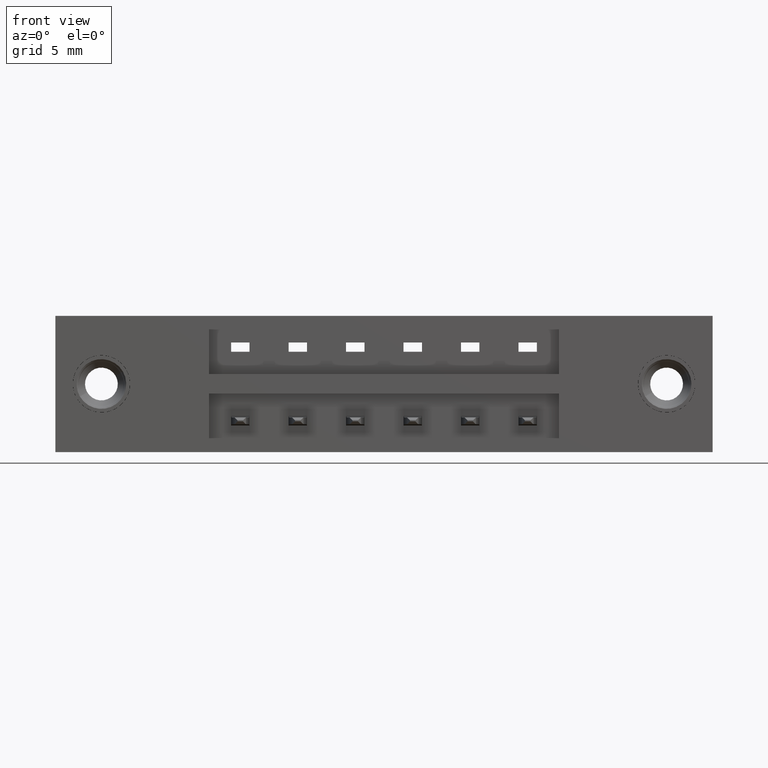
[diagram: clean part render]
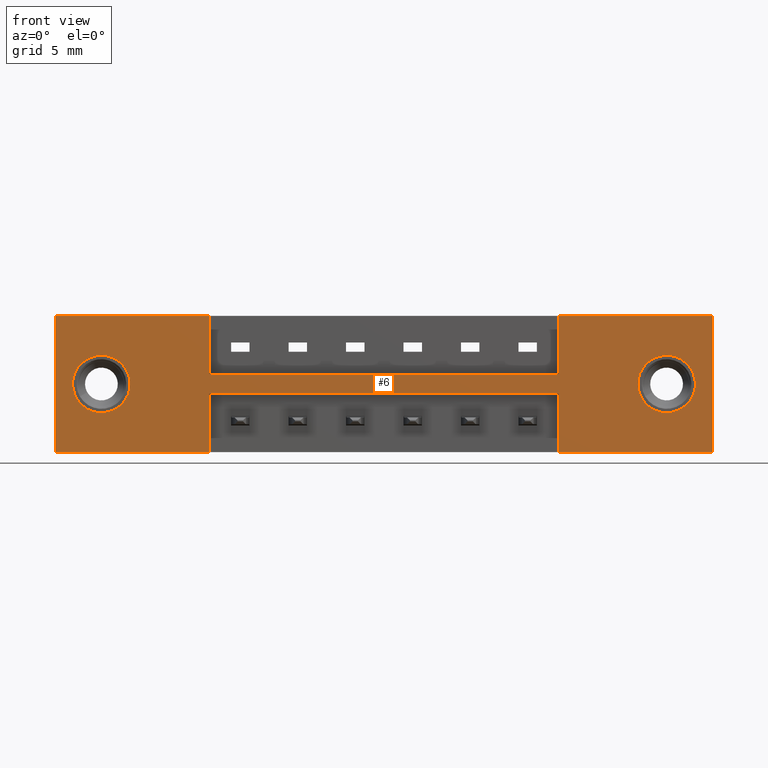
[diagram: same view with one face highlighted and labeled with its STEP entity id]
A machine part, front view. The second image highlights one B-rep face of the part: STEP entity #6.
In plain terms, the highlighted planar face has unit normal (0, -1, 0).
Its self-contained STEP definition (entity closure, byte-faithful):
#6 = ADVANCED_FACE ( 'NONE', ( #1727, #9404, #3496 ), #7607, .T. ) ;
#46 = DIRECTION ( 'NONE',  ( -1.000000000000000000, -0.0000000000000000000, -0.0000000000000000000 ) ) ;
#147 = ORIENTED_EDGE ( 'NONE', *, *, #2814, .F. ) ;
#158 = VERTEX_POINT ( 'NONE', #3230 ) ;
#191 = DIRECTION ( 'NONE',  ( -0.0000000000000000000, -0.0000000000000000000, 1.000000000000000000 ) ) ;
#376 = VECTOR ( 'NONE', #3260, 39.37007874015748100 ) ;
#408 = CARTESIAN_POINT ( 'NONE',  ( 1.784000000000000500, 0.0000000000000000000, 0.0000000000000000000 ) ) ;
#435 = DIRECTION ( 'NONE',  ( 0.0000000000000000000, 0.0000000000000000000, -1.000000000000000000 ) ) ;
#590 = DIRECTION ( 'NONE',  ( 1.000000000000000000, 0.0000000000000000000, 0.0000000000000000000 ) ) ;
#663 = DIRECTION ( 'NONE',  ( 0.0000000000000000000, 1.000000000000000000, 0.0000000000000000000 ) ) ;
#669 = VECTOR ( 'NONE', #1976, 39.37007874015748100 ) ;
#688 = EDGE_CURVE ( 'NONE', #1655, #7183, #2328, .T. ) ;
#976 = VECTOR ( 'NONE', #191, 39.37007874015748100 ) ;
#1024 = ORIENTED_EDGE ( 'NONE', *, *, #7387, .F. ) ;
#1143 = CARTESIAN_POINT ( 'NONE',  ( 0.4174999999999998700, 0.0000000000000000000, 0.0000000000000000000 ) ) ;
#1218 = DIRECTION ( 'NONE',  ( 0.0000000000000000000, 1.000000000000000000, -0.0000000000000000000 ) ) ;
#1229 = CARTESIAN_POINT ( 'NONE',  ( 0.4174999999999999800, 0.0000000000000000000, -0.1585000000000000300 ) ) ;
#1325 = ORIENTED_EDGE ( 'NONE', *, *, #4837, .F. ) ;
#1408 = ORIENTED_EDGE ( 'NONE', *, *, #6851, .T. ) ;
#1477 = LINE ( 'NONE', #4394, #7908 ) ;
#1510 = EDGE_LOOP ( 'NONE', ( #147, #1024, #2126, #4854, #4447, #1325, #5580, #8631, #8199, #8635, #2459, #4000 ) ) ;
#1655 = VERTEX_POINT ( 'NONE', #8402 ) ;
#1727 = FACE_BOUND ( 'NONE', #9434, .T. ) ;
#1779 = LINE ( 'NONE', #8340, #5320 ) ;
#1825 = AXIS2_PLACEMENT_3D ( 'NONE', #3296, #8495, #4062 ) ;
#1867 = VERTEX_POINT ( 'NONE', #8879 ) ;
#1870 = VERTEX_POINT ( 'NONE', #5804 ) ;
#1976 = DIRECTION ( 'NONE',  ( -0.0000000000000000000, -0.0000000000000000000, -1.000000000000000000 ) ) ;
#2126 = ORIENTED_EDGE ( 'NONE', *, *, #5661, .F. ) ;
#2197 = LINE ( 'NONE', #3782, #3973 ) ;
#2328 = CIRCLE ( 'NONE', #6166, 0.07800000000000009700 ) ;
#2376 = LINE ( 'NONE', #2512, #376 ) ;
#2459 = ORIENTED_EDGE ( 'NONE', *, *, #5484, .F. ) ;
#2482 = VERTEX_POINT ( 'NONE', #9345 ) ;
#2512 = CARTESIAN_POINT ( 'NONE',  ( 0.4174999999999999800, 0.0000000000000000000, -0.1585000000000000300 ) ) ;
#2610 = VECTOR ( 'NONE', #6233, 39.37007874015748100 ) ;
#2740 = CARTESIAN_POINT ( 'NONE',  ( 0.0000000000000000000, 0.0000000000000000000, -0.3700000000000000000 ) ) ;
#2814 = EDGE_CURVE ( 'NONE', #8634, #158, #7176, .T. ) ;
#2889 = CIRCLE ( 'NONE', #1825, 0.07800000000000001400 ) ;
#3062 = CIRCLE ( 'NONE', #7996, 0.07800000000000001400 ) ;
#3230 = CARTESIAN_POINT ( 'NONE',  ( 1.366499999999999800, 0.0000000000000000000, -0.2114999999999999900 ) ) ;
#3260 = DIRECTION ( 'NONE',  ( 1.000000000000000000, 0.0000000000000000000, 0.0000000000000000000 ) ) ;
#3296 = CARTESIAN_POINT ( 'NONE',  ( 0.1250000000000001900, 0.0000000000000000000, -0.1849999999999987200 ) ) ;
#3383 = DIRECTION ( 'NONE',  ( 0.0000000000000000000, 1.000000000000000000, -0.0000000000000000000 ) ) ;
#3389 = DIRECTION ( 'NONE',  ( 0.0000000000000000000, -1.000000000000000000, 0.0000000000000000000 ) ) ;
#3417 = CARTESIAN_POINT ( 'NONE',  ( 1.659000000000001100, 0.0000000000000000000, -0.1850000000000002200 ) ) ;
#3496 = FACE_OUTER_BOUND ( 'NONE', #1510, .T. ) ;
#3535 = VERTEX_POINT ( 'NONE', #3982 ) ;
#3549 = VERTEX_POINT ( 'NONE', #3955 ) ;
#3775 = LINE ( 'NONE', #9503, #9439 ) ;
#3782 = CARTESIAN_POINT ( 'NONE',  ( 0.0000000000000000000, 0.0000000000000000000, -0.3700000000000000000 ) ) ;
#3794 = CARTESIAN_POINT ( 'NONE',  ( 1.366499999999999800, 0.0000000000000000000, -0.3700000000000000000 ) ) ;
#3829 = VERTEX_POINT ( 'NONE', #1143 ) ;
#3831 = DIRECTION ( 'NONE',  ( 0.0000000000000000000, -0.0000000000000000000, -1.000000000000000000 ) ) ;
#3944 = DIRECTION ( 'NONE',  ( 0.0000000000000000000, 0.0000000000000000000, 1.000000000000000000 ) ) ;
#3955 = CARTESIAN_POINT ( 'NONE',  ( 0.0000000000000000000, 0.0000000000000000000, 0.0000000000000000000 ) ) ;
#3956 = CARTESIAN_POINT ( 'NONE',  ( 0.4174999999999997000, 0.0000000000000000000, -0.2114999999999999900 ) ) ;
#3967 = DIRECTION ( 'NONE',  ( -1.000000000000000000, -0.0000000000000000000, -0.0000000000000000000 ) ) ;
#3973 = VECTOR ( 'NONE', #46, 39.37007874015748100 ) ;
#3982 = CARTESIAN_POINT ( 'NONE',  ( 0.4174999999999999800, 0.0000000000000000000, -0.1585000000000000300 ) ) ;
#4000 = ORIENTED_EDGE ( 'NONE', *, *, #7896, .F. ) ;
#4017 = VECTOR ( 'NONE', #8243, 39.37007874015748100 ) ;
#4062 = DIRECTION ( 'NONE',  ( 0.0000000000000000000, 0.0000000000000000000, 1.000000000000000000 ) ) ;
#4092 = EDGE_CURVE ( 'NONE', #1867, #6205, #6940, .T. ) ;
#4320 = VERTEX_POINT ( 'NONE', #8597 ) ;
#4394 = CARTESIAN_POINT ( 'NONE',  ( 0.4174999999999997000, 0.0000000000000000000, -0.2114999999999999900 ) ) ;
#4447 = ORIENTED_EDGE ( 'NONE', *, *, #4092, .F. ) ;
#4620 = EDGE_CURVE ( 'NONE', #6205, #2482, #6011, .T. ) ;
#4717 = EDGE_CURVE ( 'NONE', #4982, #3549, #1779, .T. ) ;
#4764 = CARTESIAN_POINT ( 'NONE',  ( 0.4174999999999997000, 0.0000000000000000000, -0.2114999999999999900 ) ) ;
#4837 = EDGE_CURVE ( 'NONE', #3535, #1867, #2376, .T. ) ;
#4854 = ORIENTED_EDGE ( 'NONE', *, *, #4620, .F. ) ;
#4855 = ORIENTED_EDGE ( 'NONE', *, *, #8196, .T. ) ;
#4938 = CARTESIAN_POINT ( 'NONE',  ( 0.0000000000000000000, 0.0000000000000000000, -0.3700000000000000000 ) ) ;
#4982 = VERTEX_POINT ( 'NONE', #4938 ) ;
#5153 = CARTESIAN_POINT ( 'NONE',  ( 0.1250000000000001900, 0.0000000000000000000, -0.1849999999999987200 ) ) ;
#5320 = VECTOR ( 'NONE', #9065, 39.37007874015748100 ) ;
#5484 = EDGE_CURVE ( 'NONE', #8747, #1870, #8537, .T. ) ;
#5580 = ORIENTED_EDGE ( 'NONE', *, *, #7776, .F. ) ;
#5661 = EDGE_CURVE ( 'NONE', #2482, #4320, #8868, .T. ) ;
#5678 = CARTESIAN_POINT ( 'NONE',  ( 1.366499999999999800, 0.0000000000000000000, 0.0000000000000000000 ) ) ;
#5724 = CARTESIAN_POINT ( 'NONE',  ( 1.659000000000001100, 0.0000000000000000000, -0.1850000000000002200 ) ) ;
#5773 = AXIS2_PLACEMENT_3D ( 'NONE', #5724, #1218, #6465 ) ;
#5804 = CARTESIAN_POINT ( 'NONE',  ( 0.4174999999999997000, 0.0000000000000000000, -0.3700000000000000000 ) ) ;
#5834 = EDGE_CURVE ( 'NONE', #3549, #3829, #3775, .T. ) ;
#5856 = EDGE_CURVE ( 'NONE', #5978, #6575, #3062, .T. ) ;
#5903 = DIRECTION ( 'NONE',  ( 0.0000000000000000000, 0.0000000000000000000, 1.000000000000000000 ) ) ;
#5978 = VERTEX_POINT ( 'NONE', #7666 ) ;
#6011 = LINE ( 'NONE', #7511, #4017 ) ;
#6166 = AXIS2_PLACEMENT_3D ( 'NONE', #3417, #3383, #6718 ) ;
#6205 = VERTEX_POINT ( 'NONE', #5678 ) ;
#6209 = LINE ( 'NONE', #8393, #6438 ) ;
#6233 = DIRECTION ( 'NONE',  ( 0.0000000000000000000, 0.0000000000000000000, -1.000000000000000000 ) ) ;
#6438 = VECTOR ( 'NONE', #3967, 39.37007874015748100 ) ;
#6465 = DIRECTION ( 'NONE',  ( 0.0000000000000000000, 0.0000000000000000000, -1.000000000000000000 ) ) ;
#6548 = CIRCLE ( 'NONE', #5773, 0.07800000000000009700 ) ;
#6575 = VERTEX_POINT ( 'NONE', #9040 ) ;
#6642 = EDGE_CURVE ( 'NONE', #1870, #4982, #6209, .T. ) ;
#6718 = DIRECTION ( 'NONE',  ( 0.0000000000000000000, 0.0000000000000000000, -1.000000000000000000 ) ) ;
#6851 = EDGE_CURVE ( 'NONE', #7183, #1655, #6548, .T. ) ;
#6940 = LINE ( 'NONE', #7664, #8662 ) ;
#7176 = LINE ( 'NONE', #9410, #976 ) ;
#7183 = VERTEX_POINT ( 'NONE', #8733 ) ;
#7226 = EDGE_LOOP ( 'NONE', ( #8852, #4855 ) ) ;
#7387 = EDGE_CURVE ( 'NONE', #4320, #8634, #2197, .T. ) ;
#7511 = CARTESIAN_POINT ( 'NONE',  ( 0.0000000000000000000, 0.0000000000000000000, 0.0000000000000000000 ) ) ;
#7607 = PLANE ( 'NONE',  #8498 ) ;
#7664 = CARTESIAN_POINT ( 'NONE',  ( 1.366499999999999800, 0.0000000000000000000, -0.1585000000000000300 ) ) ;
#7666 = CARTESIAN_POINT ( 'NONE',  ( 0.1250000000000001900, 0.0000000000000000000, -0.1069999999999986900 ) ) ;
#7776 = EDGE_CURVE ( 'NONE', #3829, #3535, #8819, .T. ) ;
#7896 = EDGE_CURVE ( 'NONE', #158, #8747, #1477, .T. ) ;
#7908 = VECTOR ( 'NONE', #8845, 39.37007874015748100 ) ;
#7996 = AXIS2_PLACEMENT_3D ( 'NONE', #5153, #663, #5903 ) ;
#8196 = EDGE_CURVE ( 'NONE', #6575, #5978, #2889, .T. ) ;
#8199 = ORIENTED_EDGE ( 'NONE', *, *, #4717, .F. ) ;
#8243 = DIRECTION ( 'NONE',  ( 1.000000000000000000, 0.0000000000000000000, 0.0000000000000000000 ) ) ;
#8340 = CARTESIAN_POINT ( 'NONE',  ( 0.0000000000000000000, 0.0000000000000000000, 0.0000000000000000000 ) ) ;
#8393 = CARTESIAN_POINT ( 'NONE',  ( 0.0000000000000000000, 0.0000000000000000000, -0.3700000000000000000 ) ) ;
#8402 = CARTESIAN_POINT ( 'NONE',  ( 1.659000000000001100, 0.0000000000000000000, -0.2630000000000002900 ) ) ;
#8495 = DIRECTION ( 'NONE',  ( 0.0000000000000000000, 1.000000000000000000, 0.0000000000000000000 ) ) ;
#8498 = AXIS2_PLACEMENT_3D ( 'NONE', #2740, #3389, #3831 ) ;
#8537 = LINE ( 'NONE', #3956, #2610 ) ;
#8597 = CARTESIAN_POINT ( 'NONE',  ( 1.784000000000000500, 0.0000000000000000000, -0.3700000000000000000 ) ) ;
#8631 = ORIENTED_EDGE ( 'NONE', *, *, #5834, .F. ) ;
#8634 = VERTEX_POINT ( 'NONE', #3794 ) ;
#8635 = ORIENTED_EDGE ( 'NONE', *, *, #6642, .F. ) ;
#8642 = VECTOR ( 'NONE', #435, 39.37007874015748100 ) ;
#8662 = VECTOR ( 'NONE', #3944, 39.37007874015748100 ) ;
#8733 = CARTESIAN_POINT ( 'NONE',  ( 1.659000000000001100, 0.0000000000000000000, -0.1070000000000001400 ) ) ;
#8747 = VERTEX_POINT ( 'NONE', #4764 ) ;
#8819 = LINE ( 'NONE', #1229, #669 ) ;
#8843 = ORIENTED_EDGE ( 'NONE', *, *, #688, .T. ) ;
#8845 = DIRECTION ( 'NONE',  ( -1.000000000000000000, -0.0000000000000000000, -0.0000000000000000000 ) ) ;
#8852 = ORIENTED_EDGE ( 'NONE', *, *, #5856, .T. ) ;
#8868 = LINE ( 'NONE', #408, #8642 ) ;
#8879 = CARTESIAN_POINT ( 'NONE',  ( 1.366499999999999800, 0.0000000000000000000, -0.1585000000000000300 ) ) ;
#9040 = CARTESIAN_POINT ( 'NONE',  ( 0.1250000000000001900, 0.0000000000000000000, -0.2629999999999987300 ) ) ;
#9065 = DIRECTION ( 'NONE',  ( -0.0000000000000000000, -0.0000000000000000000, 1.000000000000000000 ) ) ;
#9345 = CARTESIAN_POINT ( 'NONE',  ( 1.784000000000000500, 0.0000000000000000000, 0.0000000000000000000 ) ) ;
#9404 = FACE_BOUND ( 'NONE', #7226, .T. ) ;
#9410 = CARTESIAN_POINT ( 'NONE',  ( 1.366499999999999800, 0.0000000000000000000, -0.2114999999999999900 ) ) ;
#9434 = EDGE_LOOP ( 'NONE', ( #1408, #8843 ) ) ;
#9439 = VECTOR ( 'NONE', #590, 39.37007874015748100 ) ;
#9503 = CARTESIAN_POINT ( 'NONE',  ( 0.0000000000000000000, 0.0000000000000000000, 0.0000000000000000000 ) ) ;